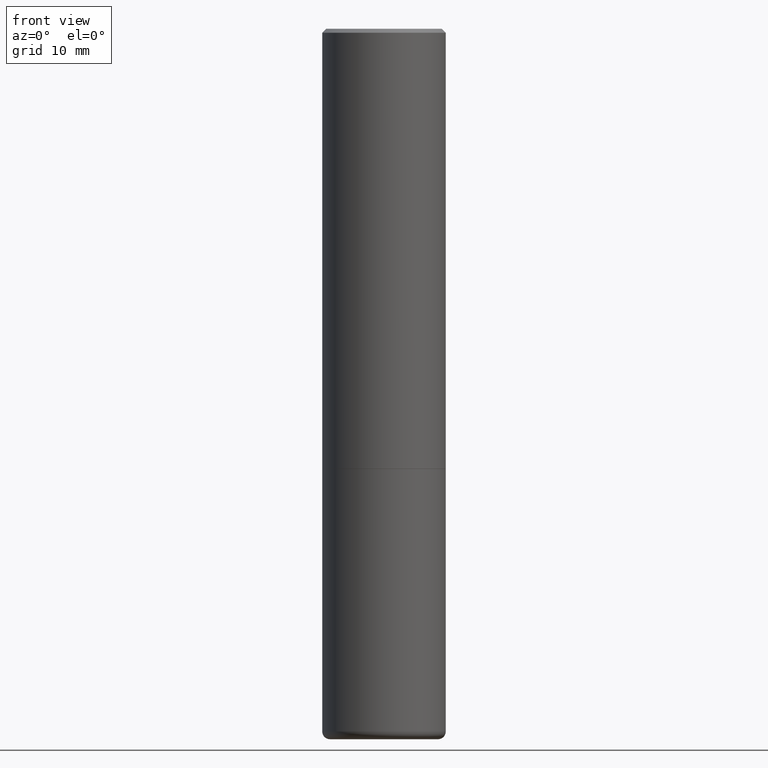
[diagram: clean part render]
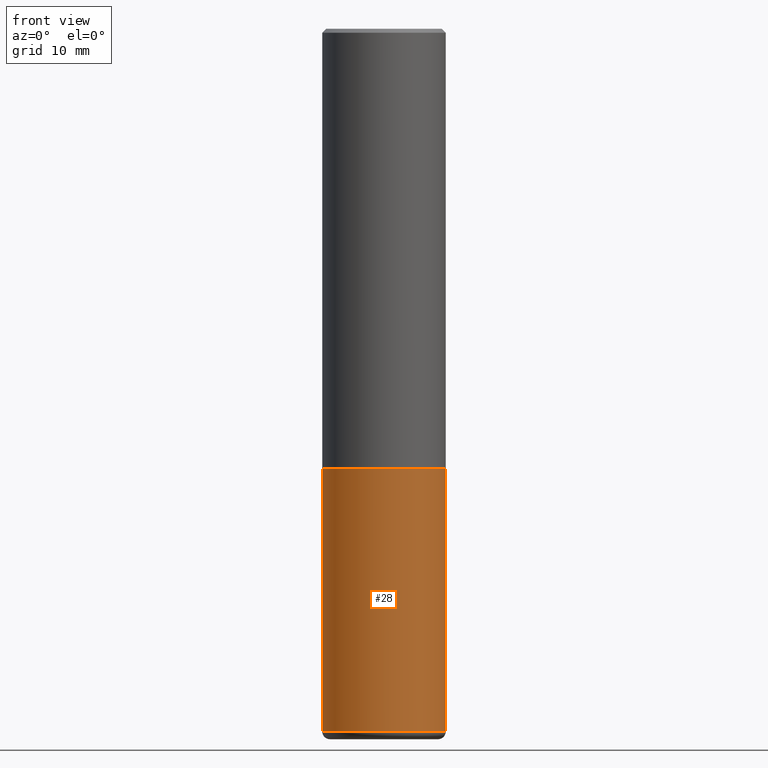
[diagram: same view with one face highlighted and labeled with its STEP entity id]
A machine part, front view. The second image highlights one B-rep face of the part: STEP entity #28.
In plain terms, the highlighted cylindrical surface (partial cylindrical patch) has radius 7.9997 mm, axis along (-0, 0, 1).
Its self-contained STEP definition (entity closure, byte-faithful):
#5 = AXIS2_PLACEMENT_3D ( 'NONE', #119, #242, #365 ) ;
#19 = CYLINDRICAL_SURFACE ( 'NONE', #69, 0.3149500000000000077 ) ;
#23 = CIRCLE ( 'NONE', #329, 0.3149500000000000077 ) ;
#25 = VERTEX_POINT ( 'NONE', #258 ) ;
#26 = CARTESIAN_POINT ( 'NONE',  ( 0.3149500000000001743, -1.470786513987674265E-14, -3.582599999999999785 ) ) ;
#28 = ADVANCED_FACE ( 'NONE', ( #383 ), #19, .T. ) ;
#39 = ORIENTED_EDGE ( 'NONE', *, *, #264, .T. ) ;
#46 = LINE ( 'NONE', #83, #139 ) ;
#55 = EDGE_CURVE ( 'NONE', #269, #25, #23, .T. ) ;
#69 = AXIS2_PLACEMENT_3D ( 'NONE', #304, #249, #121 ) ;
#72 = CIRCLE ( 'NONE', #5, 0.3149500000000000632 ) ;
#83 = CARTESIAN_POINT ( 'NONE',  ( -0.3149500000000000077, 2.237854346276435590E-15, -1.549218606675782676E-29 ) ) ;
#92 = LINE ( 'NONE', #247, #317 ) ;
#119 = CARTESIAN_POINT ( 'NONE',  ( 8.761136545038868759E-29, -1.250858104453945120E-14, -3.582599999999999785 ) ) ;
#121 = DIRECTION ( 'NONE',  ( 1.000000000000000000, -6.982962677686266711E-15, 4.876176775795936353E-29 ) ) ;
#132 = EDGE_LOOP ( 'NONE', ( #407, #39, #296, #241 ) ) ;
#139 = VECTOR ( 'NONE', #145, 39.37007874015748143 ) ;
#145 = DIRECTION ( 'NONE',  ( -2.445468806185136877E-29, 3.491481338843145188E-15, 1.000000000000000000 ) ) ;
#149 = EDGE_CURVE ( 'NONE', #358, #25, #92, .T. ) ;
#190 = DIRECTION ( 'NONE',  ( 1.000000000000000000, -6.982962677686266711E-15, 0.000000000000000000 ) ) ;
#241 = ORIENTED_EDGE ( 'NONE', *, *, #55, .F. ) ;
#242 = DIRECTION ( 'NONE',  ( -2.445468806185136597E-29, 3.491481338843145583E-15, 1.000000000000000000 ) ) ;
#244 = CARTESIAN_POINT ( 'NONE',  ( 5.487632001079445967E-29, -7.834884124364017250E-15, -2.243999999999999773 ) ) ;
#247 = CARTESIAN_POINT ( 'NONE',  ( 0.3149500000000000077, -2.199284095337289871E-15, 1.535751875536930130E-29 ) ) ;
#249 = DIRECTION ( 'NONE',  ( -2.445468806185136597E-29, 3.491481338843145583E-15, 1.000000000000000000 ) ) ;
#258 = CARTESIAN_POINT ( 'NONE',  ( 0.3149500000000000077, -1.003416821970130712E-14, -2.243999999999999773 ) ) ;
#264 = EDGE_CURVE ( 'NONE', #410, #358, #72, .T. ) ;
#269 = VERTEX_POINT ( 'NONE', #293 ) ;
#293 = CARTESIAN_POINT ( 'NONE',  ( -0.3149500000000000077, -7.933878238175299817E-15, -2.243999999999999773 ) ) ;
#296 = ORIENTED_EDGE ( 'NONE', *, *, #149, .T. ) ;
#302 = CARTESIAN_POINT ( 'NONE',  ( -0.3149500000000001743, -1.027072669826301521E-14, -3.582599999999999785 ) ) ;
#304 = CARTESIAN_POINT ( 'NONE',  ( 0.000000000000000000, 0.000000000000000000, 0.000000000000000000 ) ) ;
#306 = EDGE_CURVE ( 'NONE', #410, #269, #46, .T. ) ;
#317 = VECTOR ( 'NONE', #400, 39.37007874015748143 ) ;
#329 = AXIS2_PLACEMENT_3D ( 'NONE', #244, #345, #190 ) ;
#345 = DIRECTION ( 'NONE',  ( -2.445468806185136597E-29, 3.491481338843145583E-15, 1.000000000000000000 ) ) ;
#358 = VERTEX_POINT ( 'NONE', #26 ) ;
#365 = DIRECTION ( 'NONE',  ( 1.000000000000000000, -6.982962677686268288E-15, 0.000000000000000000 ) ) ;
#383 = FACE_OUTER_BOUND ( 'NONE', #132, .T. ) ;
#400 = DIRECTION ( 'NONE',  ( -2.445468806185136877E-29, 3.491481338843145188E-15, 1.000000000000000000 ) ) ;
#407 = ORIENTED_EDGE ( 'NONE', *, *, #306, .F. ) ;
#410 = VERTEX_POINT ( 'NONE', #302 ) ;